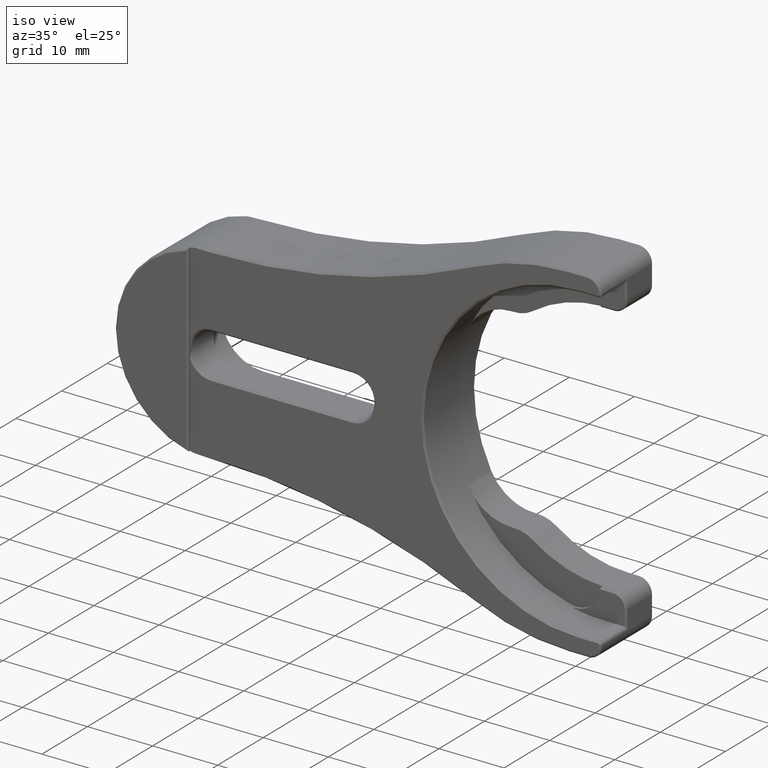
[diagram: clean part render]
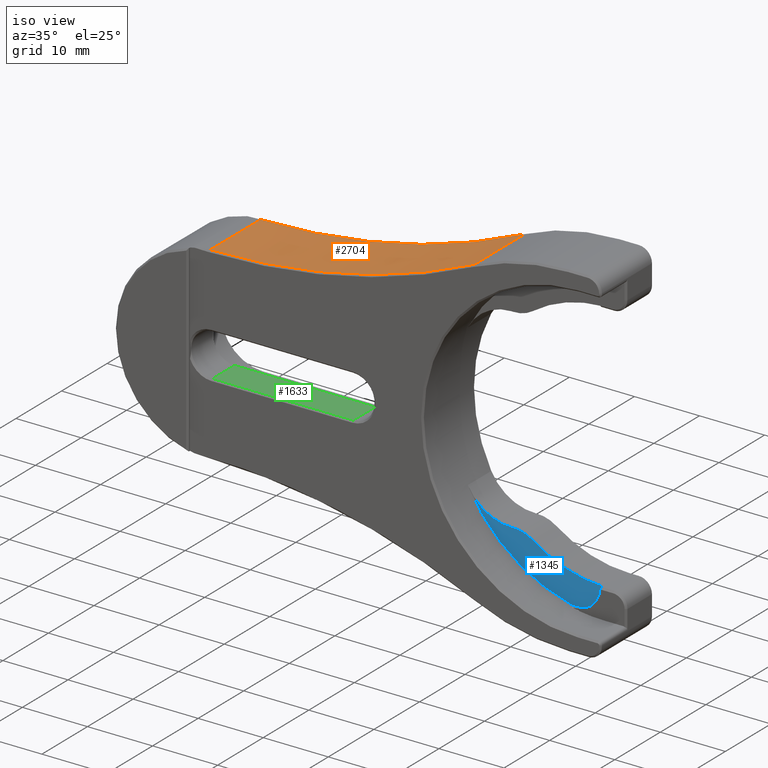
[diagram: same view with three faces highlighted in distinct colors, each labeled with its STEP entity id]
A machine part, iso view with three faces highlighted in distinct colors.
Their STEP definitions:

[orange] entity #2704 — the highlighted cylindrical surface (partial cylindrical patch) has radius 97 mm, axis along (-0, 1, -0).
#7 = ORIENTED_EDGE ( 'NONE', *, *, #2535, .T. ) ;
#18 = CARTESIAN_POINT ( 'NONE',  ( -16.08333333333331794, 0.000000000000000000, 23.31707700102083791 ) ) ;
#105 = VECTOR ( 'NONE', #507, 1000.000000000000000 ) ;
#123 = VERTEX_POINT ( 'NONE', #3196 ) ;
#155 = CARTESIAN_POINT ( 'NONE',  ( -56.49999999999996447, 11.75000000000002842, 111.4958332609928533 ) ) ;
#193 = EDGE_CURVE ( 'NONE', #123, #311, #3294, .T. ) ;
#203 = DIRECTION ( 'NONE',  ( 0.000000000000000000, 0.000000000000000000, 1.000000000000000000 ) ) ;
#311 = VERTEX_POINT ( 'NONE', #2039 ) ;
#333 = AXIS2_PLACEMENT_3D ( 'NONE', #2101, #2416, #2186 ) ;
#507 = DIRECTION ( 'NONE',  ( -0.000000000000000000, 1.000000000000000000, -0.000000000000000000 ) ) ;
#527 = CARTESIAN_POINT ( 'NONE',  ( -56.49999999999996447, 0.7500000000000002220, 111.4958332609928533 ) ) ;
#655 = DIRECTION ( 'NONE',  ( 0.000000000000000000, 1.000000000000000000, 0.000000000000000000 ) ) ;
#722 = VECTOR ( 'NONE', #1005, 1000.000000000000000 ) ;
#807 = AXIS2_PLACEMENT_3D ( 'NONE', #2844, #2037, #3058 ) ;
#1000 = CARTESIAN_POINT ( 'NONE',  ( -56.64315519673124300, 0.000000000000000000, 14.49593889718622819 ) ) ;
#1005 = DIRECTION ( 'NONE',  ( -0.000000000000000000, 1.000000000000000000, -0.000000000000000000 ) ) ;
#1445 = EDGE_CURVE ( 'NONE', #311, #3216, #3139, .T. ) ;
#1492 = ORIENTED_EDGE ( 'NONE', *, *, #193, .T. ) ;
#1549 = ORIENTED_EDGE ( 'NONE', *, *, #2459, .T. ) ;
#1658 = CYLINDRICAL_SURFACE ( 'NONE', #333, 96.99999999999997158 ) ;
#1761 = VERTEX_POINT ( 'NONE', #3084 ) ;
#1821 = DIRECTION ( 'NONE',  ( 0.000000000000000000, 0.000000000000000000, -1.000000000000000000 ) ) ;
#1909 = AXIS2_PLACEMENT_3D ( 'NONE', #155, #655, #203 ) ;
#1947 = CARTESIAN_POINT ( 'NONE',  ( -56.64315519673124300, 11.75000000000002842, 14.49593889718622819 ) ) ;
#2037 = DIRECTION ( 'NONE',  ( 0.000000000000000000, -1.000000000000000000, 0.000000000000000000 ) ) ;
#2039 = CARTESIAN_POINT ( 'NONE',  ( -16.08333333333331794, 11.75000000000002842, 23.31707700102083791 ) ) ;
#2101 = CARTESIAN_POINT ( 'NONE',  ( -56.49999999999996447, 0.000000000000000000, 111.4958332609928533 ) ) ;
#2137 = CIRCLE ( 'NONE', #807, 96.99999999999997158 ) ;
#2186 = DIRECTION ( 'NONE',  ( 0.000000000000000000, 0.000000000000000000, 1.000000000000000000 ) ) ;
#2187 = CIRCLE ( 'NONE', #2880, 96.99999999999997158 ) ;
#2191 = VERTEX_POINT ( 'NONE', #3099 ) ;
#2214 = ORIENTED_EDGE ( 'NONE', *, *, #2944, .F. ) ;
#2356 = ORIENTED_EDGE ( 'NONE', *, *, #1445, .T. ) ;
#2416 = DIRECTION ( 'NONE',  ( -0.000000000000000000, 1.000000000000000000, -0.000000000000000000 ) ) ;
#2459 = EDGE_CURVE ( 'NONE', #2191, #1761, #2187, .T. ) ;
#2491 = EDGE_LOOP ( 'NONE', ( #2214, #1549, #7, #1492, #2356 ) ) ;
#2535 = EDGE_CURVE ( 'NONE', #1761, #123, #2137, .T. ) ;
#2704 = ADVANCED_FACE ( 'NONE', ( #2922 ), #1658, .F. ) ;
#2790 = LINE ( 'NONE', #1000, #105 ) ;
#2844 = CARTESIAN_POINT ( 'NONE',  ( -56.49999999999996447, 0.7500000000000002220, 111.4958332609928533 ) ) ;
#2880 = AXIS2_PLACEMENT_3D ( 'NONE', #527, #3073, #1821 ) ;
#2922 = FACE_OUTER_BOUND ( 'NONE', #2491, .T. ) ;
#2944 = EDGE_CURVE ( 'NONE', #2191, #3216, #2790, .T. ) ;
#3058 = DIRECTION ( 'NONE',  ( 0.000000000000000000, 0.000000000000000000, -1.000000000000000000 ) ) ;
#3073 = DIRECTION ( 'NONE',  ( 0.000000000000000000, -1.000000000000000000, 0.000000000000000000 ) ) ;
#3084 = CARTESIAN_POINT ( 'NONE',  ( -56.49999999999996447, 0.7500000000000002220, 14.49583326099287994 ) ) ;
#3099 = CARTESIAN_POINT ( 'NONE',  ( -56.64315519673124300, 0.7500000000000002220, 14.49593889718622819 ) ) ;
#3139 = CIRCLE ( 'NONE', #1909, 96.99999999999997158 ) ;
#3196 = CARTESIAN_POINT ( 'NONE',  ( -16.08333333333331794, 0.7500000000000002220, 23.31707700102083791 ) ) ;
#3216 = VERTEX_POINT ( 'NONE', #1947 ) ;
#3294 = LINE ( 'NONE', #18, #722 ) ;

[blue] entity #1345 — the highlighted planar face has unit normal (0, -1, 0).
#33 = CARTESIAN_POINT ( 'NONE',  ( -5.406801007556668814, 6.599999999999999645, -23.22905514360591539 ) ) ;
#99 = CARTESIAN_POINT ( 'NONE',  ( -4.499999999999992895, 6.599999999999999645, -19.33319683859863147 ) ) ;
#100 = EDGE_CURVE ( 'NONE', #1710, #346, #1531, .T. ) ;
#119 = CIRCLE ( 'NONE', #2403, 5.000000000000000888 ) ;
#195 = ORIENTED_EDGE ( 'NONE', *, *, #1862, .F. ) ;
#208 = AXIS2_PLACEMENT_3D ( 'NONE', #99, #2083, #1624 ) ;
#253 = CARTESIAN_POINT ( 'NONE',  ( -21.19270795598177060, 6.599999999999999645, -10.94036697247705980 ) ) ;
#290 = ORIENTED_EDGE ( 'NONE', *, *, #699, .T. ) ;
#304 = DIRECTION ( 'NONE',  ( 0.000000000000000000, -1.000000000000000000, 0.000000000000000000 ) ) ;
#346 = VERTEX_POINT ( 'NONE', #33 ) ;
#436 = CARTESIAN_POINT ( 'NONE',  ( 0.000000000000000000, 6.599999999999999645, 0.000000000000000000 ) ) ;
#504 = DIRECTION ( 'NONE',  ( 0.000000000000000000, -0.000000000000000000, -1.000000000000000000 ) ) ;
#505 = DIRECTION ( 'NONE',  ( 0.000000000000000000, -1.000000000000000000, 0.000000000000000000 ) ) ;
#532 = VERTEX_POINT ( 'NONE', #3019 ) ;
#575 = ORIENTED_EDGE ( 'NONE', *, *, #3004, .T. ) ;
#632 = DIRECTION ( 'NONE',  ( 0.000000000000000000, -1.000000000000000000, 0.000000000000000000 ) ) ;
#685 = DIRECTION ( 'NONE',  ( 0.000000000000000000, 0.000000000000000000, -1.000000000000000000 ) ) ;
#699 = EDGE_CURVE ( 'NONE', #346, #2043, #2945, .T. ) ;
#737 = CARTESIAN_POINT ( 'NONE',  ( -2.249999999999998668, 6.599999999999999645, 9.666598419299315736 ) ) ;
#763 = AXIS2_PLACEMENT_3D ( 'NONE', #3054, #505, #2583 ) ;
#941 = AXIS2_PLACEMENT_3D ( 'NONE', #1926, #1709, #2712 ) ;
#948 = VERTEX_POINT ( 'NONE', #1001 ) ;
#988 = DIRECTION ( 'NONE',  ( 0.000000000000000000, 0.000000000000000000, -1.000000000000000000 ) ) ;
#1001 = CARTESIAN_POINT ( 'NONE',  ( -0.5015220482231355081, 6.599999999999999645, -19.44353300290731923 ) ) ;
#1073 = CARTESIAN_POINT ( 'NONE',  ( -11.19736850548029139, 6.599999999999999645, -15.90350397090144874 ) ) ;
#1205 = ORIENTED_EDGE ( 'NONE', *, *, #1267, .T. ) ;
#1267 = EDGE_CURVE ( 'NONE', #948, #3100, #1677, .T. ) ;
#1345 = ADVANCED_FACE ( 'NONE', ( #2060 ), #2787, .T. ) ;
#1531 = CIRCLE ( 'NONE', #941, 23.85000000000000142 ) ;
#1600 = EDGE_LOOP ( 'NONE', ( #1205, #2390, #195, #2375, #290, #575 ) ) ;
#1624 = DIRECTION ( 'NONE',  ( 0.000000000000000000, 0.000000000000000000, 1.000000000000000000 ) ) ;
#1677 = CIRCLE ( 'NONE', #2208, 19.45000000000000284 ) ;
#1702 = CIRCLE ( 'NONE', #3033, 7.500000000000000000 ) ;
#1709 = DIRECTION ( 'NONE',  ( 0.000000000000000000, -1.000000000000000000, 0.000000000000000000 ) ) ;
#1710 = VERTEX_POINT ( 'NONE', #253 ) ;
#1862 = EDGE_CURVE ( 'NONE', #1710, #532, #1702, .T. ) ;
#1926 = CARTESIAN_POINT ( 'NONE',  ( 0.000000000000000000, 6.599999999999999645, 0.000000000000000000 ) ) ;
#1933 = CARTESIAN_POINT ( 'NONE',  ( -14.52833438491831863, 6.599999999999999645, -7.500000000000000000 ) ) ;
#1949 = DIRECTION ( 'NONE',  ( -0.000000000000000000, 1.000000000000000000, -0.000000000000000000 ) ) ;
#2043 = VERTEX_POINT ( 'NONE', #2766 ) ;
#2060 = FACE_OUTER_BOUND ( 'NONE', #1600, .T. ) ;
#2083 = DIRECTION ( 'NONE',  ( 0.000000000000000000, -1.000000000000000000, 0.000000000000000000 ) ) ;
#2154 = AXIS2_PLACEMENT_3D ( 'NONE', #737, #2328, #504 ) ;
#2197 = DIRECTION ( 'NONE',  ( 0.000000000000000000, 0.000000000000000000, -1.000000000000000000 ) ) ;
#2208 = AXIS2_PLACEMENT_3D ( 'NONE', #436, #1949, #685 ) ;
#2328 = DIRECTION ( 'NONE',  ( 0.000000000000000000, -1.000000000000000000, 0.000000000000000000 ) ) ;
#2375 = ORIENTED_EDGE ( 'NONE', *, *, #100, .T. ) ;
#2390 = ORIENTED_EDGE ( 'NONE', *, *, #2861, .T. ) ;
#2403 = AXIS2_PLACEMENT_3D ( 'NONE', #2842, #304, #988 ) ;
#2583 = DIRECTION ( 'NONE',  ( 0.000000000000000000, 0.000000000000000000, 1.000000000000000000 ) ) ;
#2712 = DIRECTION ( 'NONE',  ( 0.000000000000000000, 0.000000000000000000, -1.000000000000000000 ) ) ;
#2766 = CARTESIAN_POINT ( 'NONE',  ( -4.499999999999992895, 6.599999999999999645, -23.33319683859863147 ) ) ;
#2787 = PLANE ( 'NONE',  #2154 ) ;
#2842 = CARTESIAN_POINT ( 'NONE',  ( -14.07586940663203912, 6.599999999999999645, -19.99180833360104614 ) ) ;
#2861 = EDGE_CURVE ( 'NONE', #3100, #532, #119, .T. ) ;
#2945 = CIRCLE ( 'NONE', #763, 4.000000000000000000 ) ;
#3004 = EDGE_CURVE ( 'NONE', #2043, #948, #3085, .T. ) ;
#3019 = CARTESIAN_POINT ( 'NONE',  ( -14.25685539794655021, 6.599999999999999645, -14.99508500016062484 ) ) ;
#3033 = AXIS2_PLACEMENT_3D ( 'NONE', #1933, #632, #2197 ) ;
#3054 = CARTESIAN_POINT ( 'NONE',  ( -4.499999999999992895, 6.599999999999999645, -19.33319683859863147 ) ) ;
#3085 = CIRCLE ( 'NONE', #208, 4.000000000000000000 ) ;
#3100 = VERTEX_POINT ( 'NONE', #1073 ) ;

[green] entity #1633 — the highlighted planar face has unit normal (0, 0, -1).
#127 = EDGE_LOOP ( 'NONE', ( #2256, #2927, #899, #910 ) ) ;
#235 = DIRECTION ( 'NONE',  ( -1.000000000000000000, 0.000000000000000000, -0.000000000000000000 ) ) ;
#855 = VECTOR ( 'NONE', #2602, 1000.000000000000000 ) ;
#899 = ORIENTED_EDGE ( 'NONE', *, *, #3200, .T. ) ;
#910 = ORIENTED_EDGE ( 'NONE', *, *, #3046, .T. ) ;
#986 = PLANE ( 'NONE',  #1004 ) ;
#1004 = AXIS2_PLACEMENT_3D ( 'NONE', #1053, #1299, #235 ) ;
#1027 = EDGE_CURVE ( 'NONE', #1682, #2829, #2268, .T. ) ;
#1053 = CARTESIAN_POINT ( 'NONE',  ( -56.29999999999999005, 0.000000000000000000, -3.299999999999999822 ) ) ;
#1202 = CARTESIAN_POINT ( 'NONE',  ( -56.29999999999999005, 5.549999999999999822, -3.299999999999999822 ) ) ;
#1299 = DIRECTION ( 'NONE',  ( 0.000000000000000000, 0.000000000000000000, -1.000000000000000000 ) ) ;
#1301 = CARTESIAN_POINT ( 'NONE',  ( -56.29999999999999005, 0.000000000000000000, -3.299999999999999822 ) ) ;
#1330 = LINE ( 'NONE', #1764, #2312 ) ;
#1338 = EDGE_CURVE ( 'NONE', #1682, #1476, #1330, .T. ) ;
#1476 = VERTEX_POINT ( 'NONE', #2988 ) ;
#1633 = ADVANCED_FACE ( 'NONE', ( #2546 ), #986, .F. ) ;
#1682 = VERTEX_POINT ( 'NONE', #1799 ) ;
#1764 = CARTESIAN_POINT ( 'NONE',  ( -34.69999999999998863, 0.7499999999999950040, -3.299999999999999822 ) ) ;
#1797 = DIRECTION ( 'NONE',  ( 1.000000000000000000, 0.000000000000000000, 0.000000000000000000 ) ) ;
#1799 = CARTESIAN_POINT ( 'NONE',  ( -56.29999999999999005, 0.7499999999999950040, -3.299999999999999822 ) ) ;
#1849 = CARTESIAN_POINT ( 'NONE',  ( -34.69999999999998863, 5.549999999999999822, -3.299999999999999822 ) ) ;
#1918 = VECTOR ( 'NONE', #2301, 1000.000000000000000 ) ;
#2182 = CARTESIAN_POINT ( 'NONE',  ( -34.69999999999998863, 0.000000000000000000, -3.299999999999999822 ) ) ;
#2198 = LINE ( 'NONE', #2182, #2285 ) ;
#2256 = ORIENTED_EDGE ( 'NONE', *, *, #1027, .F. ) ;
#2268 = LINE ( 'NONE', #1301, #1918 ) ;
#2285 = VECTOR ( 'NONE', #3221, 1000.000000000000000 ) ;
#2301 = DIRECTION ( 'NONE',  ( -0.000000000000000000, 1.000000000000000000, -0.000000000000000000 ) ) ;
#2312 = VECTOR ( 'NONE', #1797, 1000.000000000000000 ) ;
#2546 = FACE_OUTER_BOUND ( 'NONE', #127, .T. ) ;
#2602 = DIRECTION ( 'NONE',  ( -1.000000000000000000, 0.000000000000000000, 0.000000000000000000 ) ) ;
#2629 = VERTEX_POINT ( 'NONE', #1849 ) ;
#2652 = CARTESIAN_POINT ( 'NONE',  ( -56.29999999999999005, 5.549999999999999822, -3.299999999999999822 ) ) ;
#2672 = LINE ( 'NONE', #2652, #855 ) ;
#2829 = VERTEX_POINT ( 'NONE', #1202 ) ;
#2927 = ORIENTED_EDGE ( 'NONE', *, *, #1338, .T. ) ;
#2988 = CARTESIAN_POINT ( 'NONE',  ( -34.69999999999998863, 0.7499999999999950040, -3.299999999999999822 ) ) ;
#3046 = EDGE_CURVE ( 'NONE', #2629, #2829, #2672, .T. ) ;
#3200 = EDGE_CURVE ( 'NONE', #1476, #2629, #2198, .T. ) ;
#3221 = DIRECTION ( 'NONE',  ( -0.000000000000000000, 1.000000000000000000, -0.000000000000000000 ) ) ;